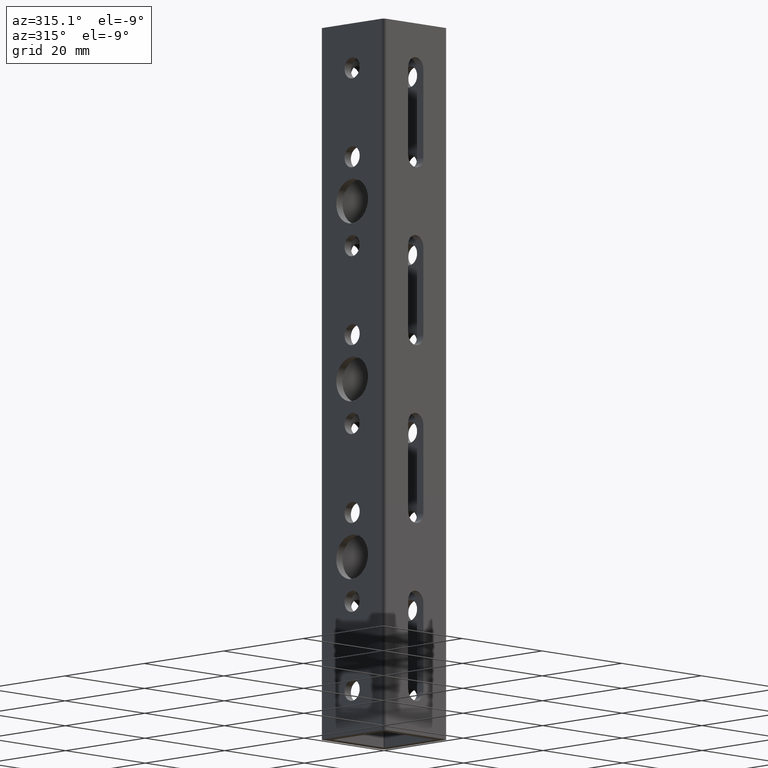
[diagram: clean part render]
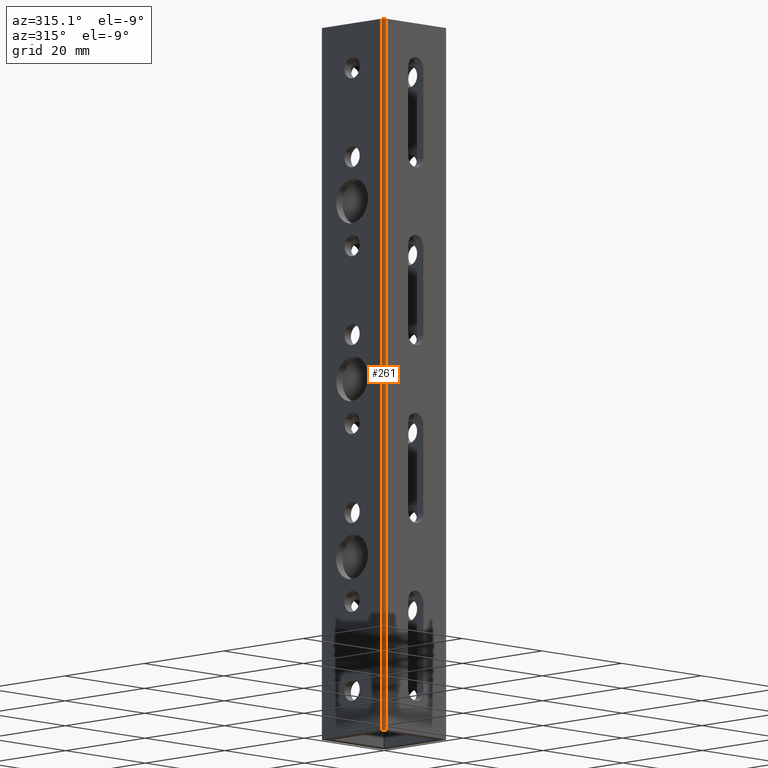
[diagram: same view with one face highlighted and labeled with its STEP entity id]
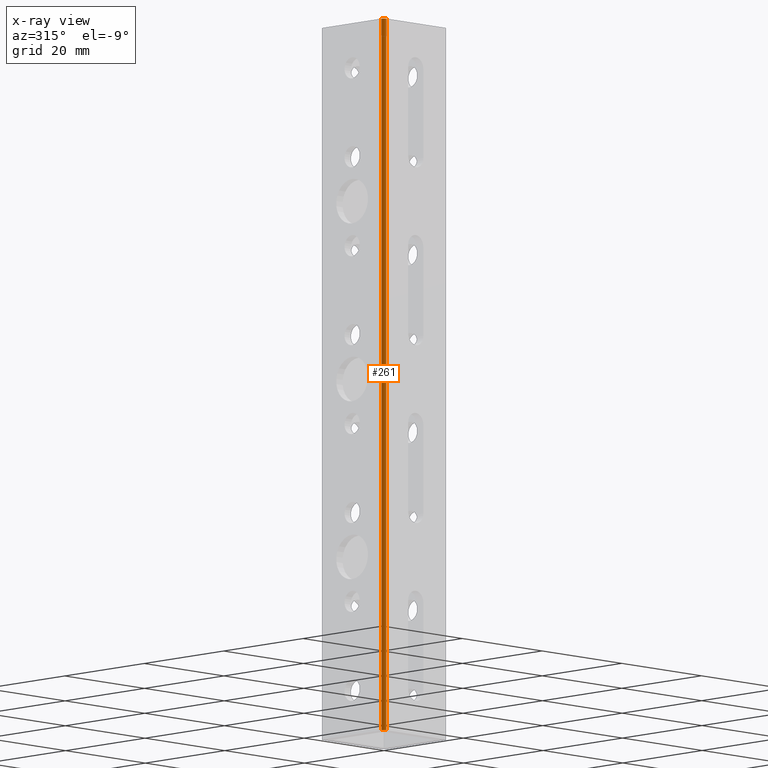
[diagram: x-ray of the same camera — body ghosted, the highlighted face saturated]
A machine part, auxiliary view. The second image highlights one B-rep face of the part: STEP entity #261.
The next image is the same camera in x-ray: the body ghosted, the highlighted face saturated — about 0% of this face is hidden behind the body in this view.
In plain terms, the highlighted cylindrical surface (edge-blend (fillet) strip) has radius 0.635 mm, axis along (0, 0, -1).
Its self-contained STEP definition (entity closure, byte-faithful):
#38 = AXIS2_PLACEMENT_3D ( 'NONE', #1860, #1848, #969 ) ;
#88 = VERTEX_POINT ( 'NONE', #728 ) ;
#261 = ADVANCED_FACE ( 'NONE', ( #1220 ), #1136, .T. ) ;
#515 = VECTOR ( 'NONE', #1990, 39.37007874015748100 ) ;
#595 = LINE ( 'NONE', #2820, #515 ) ;
#683 = LINE ( 'NONE', #3635, #2004 ) ;
#695 = CARTESIAN_POINT ( 'NONE',  ( -0.2899606299212599800, -0.2899606299212599300, 5.039370078740157400 ) ) ;
#728 = CARTESIAN_POINT ( 'NONE',  ( -0.2899606299212599800, -0.3149606299212599500, 0.0000000000000000000 ) ) ;
#785 = DIRECTION ( 'NONE',  ( 0.0000000000000000000, 0.0000000000000000000, -1.000000000000000000 ) ) ;
#861 = EDGE_CURVE ( 'NONE', #1767, #3128, #2789, .T. ) ;
#969 = DIRECTION ( 'NONE',  ( 1.000000000000000000, 0.0000000000000000000, 0.0000000000000000000 ) ) ;
#979 = DIRECTION ( 'NONE',  ( 0.0000000000000000000, 0.0000000000000000000, 1.000000000000000000 ) ) ;
#1136 = CYLINDRICAL_SURFACE ( 'NONE', #1407, 0.02500000000000000500 ) ;
#1220 = FACE_OUTER_BOUND ( 'NONE', #3174, .T. ) ;
#1268 = AXIS2_PLACEMENT_3D ( 'NONE', #695, #979, #2935 ) ;
#1343 = EDGE_CURVE ( 'NONE', #88, #3478, #2958, .T. ) ;
#1407 = AXIS2_PLACEMENT_3D ( 'NONE', #3056, #785, #1647 ) ;
#1544 = ORIENTED_EDGE ( 'NONE', *, *, #1620, .F. ) ;
#1609 = EDGE_CURVE ( 'NONE', #3478, #1767, #683, .T. ) ;
#1620 = EDGE_CURVE ( 'NONE', #3128, #88, #595, .T. ) ;
#1647 = DIRECTION ( 'NONE',  ( -1.000000000000000000, 0.0000000000000000000, 0.0000000000000000000 ) ) ;
#1767 = VERTEX_POINT ( 'NONE', #2600 ) ;
#1810 = ORIENTED_EDGE ( 'NONE', *, *, #1343, .F. ) ;
#1848 = DIRECTION ( 'NONE',  ( -0.0000000000000000000, 0.0000000000000000000, -1.000000000000000000 ) ) ;
#1860 = CARTESIAN_POINT ( 'NONE',  ( -0.2899606299212599800, -0.2899606299212599300, 0.0000000000000000000 ) ) ;
#1949 = CARTESIAN_POINT ( 'NONE',  ( -0.3149606299212600000, -0.2899606299212599300, 0.0000000000000000000 ) ) ;
#1990 = DIRECTION ( 'NONE',  ( 0.0000000000000000000, 0.0000000000000000000, -1.000000000000000000 ) ) ;
#2004 = VECTOR ( 'NONE', #2998, 39.37007874015748100 ) ;
#2053 = CARTESIAN_POINT ( 'NONE',  ( -0.2899606299212599800, -0.3149606299212599500, 5.039370078740157400 ) ) ;
#2133 = ORIENTED_EDGE ( 'NONE', *, *, #1609, .F. ) ;
#2600 = CARTESIAN_POINT ( 'NONE',  ( -0.3149606299212600000, -0.2899606299212599300, 5.039370078740157400 ) ) ;
#2789 = CIRCLE ( 'NONE', #1268, 0.02500000000000000500 ) ;
#2820 = CARTESIAN_POINT ( 'NONE',  ( -0.2899606299212599800, -0.3149606299212599500, 17.63779527559055200 ) ) ;
#2935 = DIRECTION ( 'NONE',  ( 1.000000000000000000, 0.0000000000000000000, 0.0000000000000000000 ) ) ;
#2958 = CIRCLE ( 'NONE', #38, 0.02500000000000000500 ) ;
#2998 = DIRECTION ( 'NONE',  ( -0.0000000000000000000, -0.0000000000000000000, 1.000000000000000000 ) ) ;
#3056 = CARTESIAN_POINT ( 'NONE',  ( -0.2899606299212599800, -0.2899606299212599300, 17.63779527559055200 ) ) ;
#3128 = VERTEX_POINT ( 'NONE', #2053 ) ;
#3174 = EDGE_LOOP ( 'NONE', ( #3587, #2133, #1810, #1544 ) ) ;
#3478 = VERTEX_POINT ( 'NONE', #1949 ) ;
#3587 = ORIENTED_EDGE ( 'NONE', *, *, #861, .F. ) ;
#3635 = CARTESIAN_POINT ( 'NONE',  ( -0.3149606299212600000, -0.2899606299212599300, 17.63779527559055200 ) ) ;